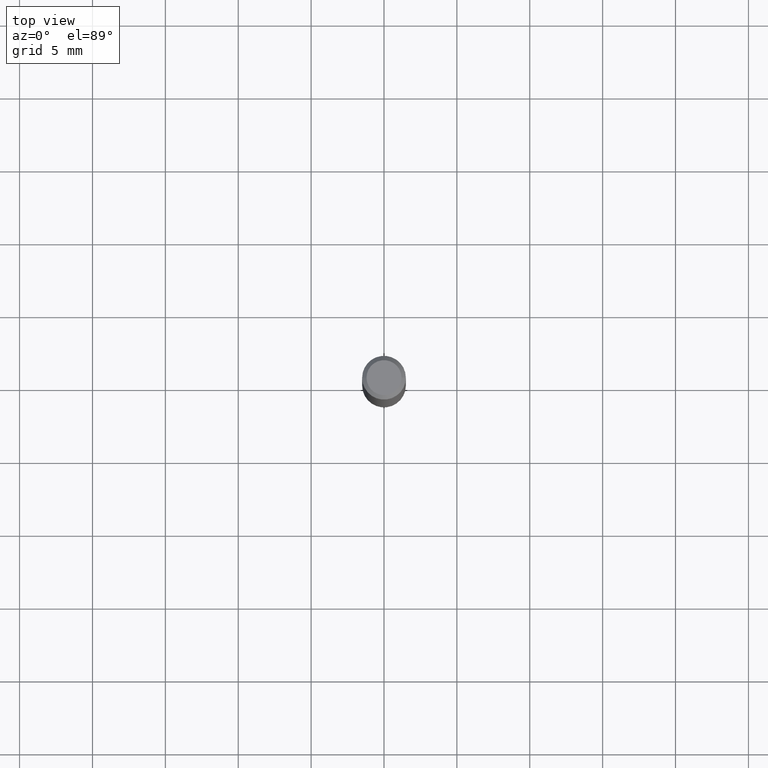
[diagram: clean part render]
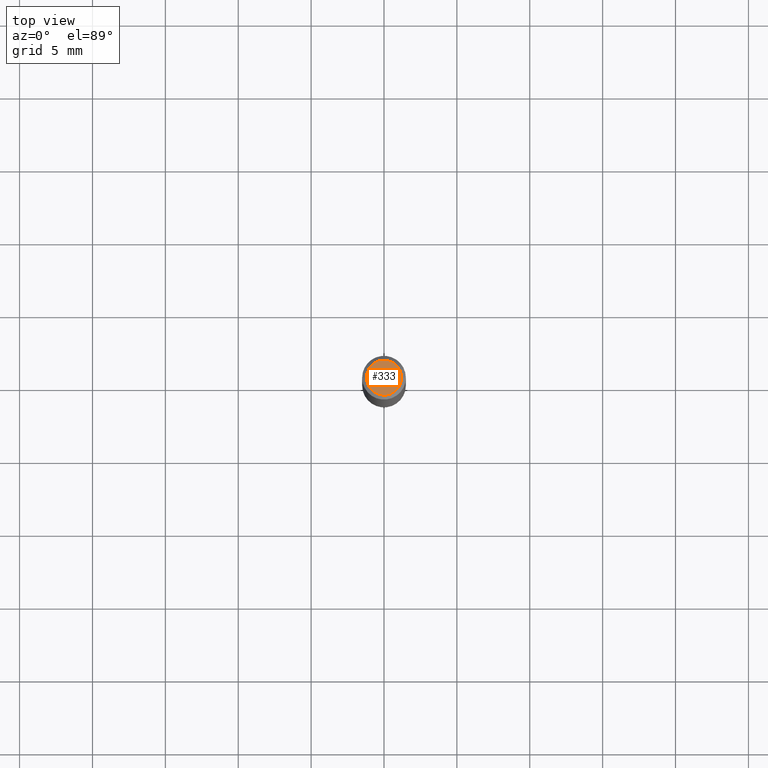
[diagram: same view with one face highlighted and labeled with its STEP entity id]
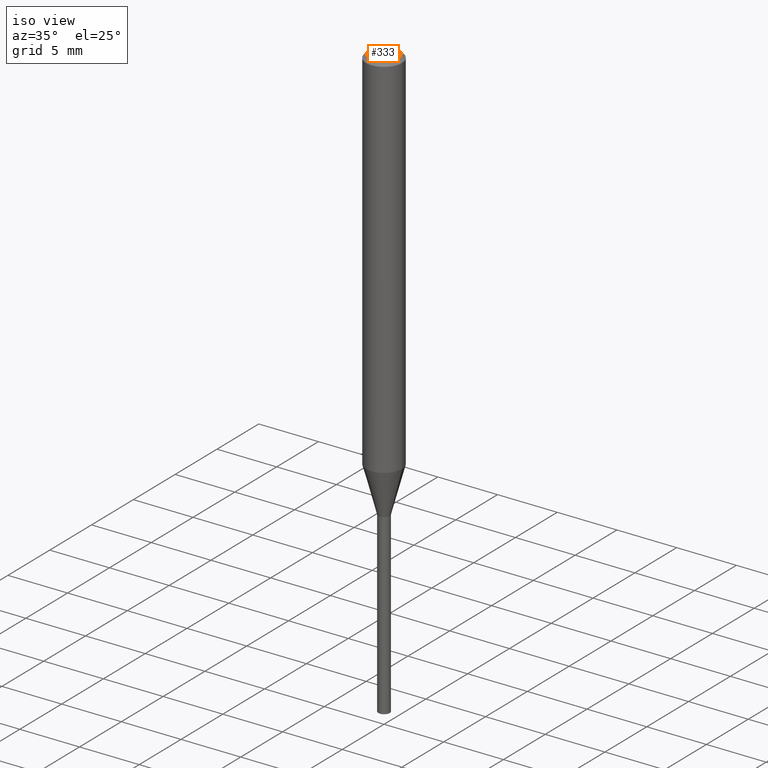
[diagram: same view with one face highlighted and labeled with its STEP entity id]
A machine part, top view. The second image highlights one B-rep face of the part: STEP entity #333.
A second angle (iso view) of the same face is appended — the face is thin or edge-on in the first view.
In plain terms, the highlighted planar face has unit normal (0, -0, -1).
Its self-contained STEP definition (entity closure, byte-faithful):
#32 = CIRCLE ( 'NONE', #52, 0.04724000000000000421 ) ;
#40 = AXIS2_PLACEMENT_3D ( 'NONE', #225, #106, #374 ) ;
#41 = DIRECTION ( 'NONE',  ( -1.000000000000000000, 6.982962677686265922E-15, -4.876176775795935793E-29 ) ) ;
#45 = DIRECTION ( 'NONE',  ( 2.438088387897960049E-29, -3.491481338843145188E-15, -1.000000000000000000 ) ) ;
#52 = AXIS2_PLACEMENT_3D ( 'NONE', #476, #367, #484 ) ;
#70 = ORIENTED_EDGE ( 'NONE', *, *, #270, .T. ) ;
#76 = CARTESIAN_POINT ( 'NONE',  ( 4.132873053354867254E-48, -5.900647395337818946E-34, -1.690012582823346072E-19 ) ) ;
#86 = CARTESIAN_POINT ( 'NONE',  ( -0.04724000000000000421, 3.504923541997677355E-16, -3.380025165670481712E-19 ) ) ;
#106 = DIRECTION ( 'NONE',  ( -2.445468806185136597E-29, 3.491481338843145583E-15, 1.000000000000000000 ) ) ;
#134 = CARTESIAN_POINT ( 'NONE',  ( 0.04724000000000000421, -3.852183633974369838E-16, -3.380025165621689721E-19 ) ) ;
#160 = EDGE_CURVE ( 'NONE', #464, #199, #32, .T. ) ;
#199 = VERTEX_POINT ( 'NONE', #86 ) ;
#225 = CARTESIAN_POINT ( 'NONE',  ( 8.265746106709734507E-48, -1.180129479067563789E-33, -3.380025165646692144E-19 ) ) ;
#237 = FACE_OUTER_BOUND ( 'NONE', #278, .T. ) ;
#270 = EDGE_CURVE ( 'NONE', #199, #464, #365, .T. ) ;
#278 = EDGE_LOOP ( 'NONE', ( #70, #306 ) ) ;
#281 = PLANE ( 'NONE',  #457 ) ;
#306 = ORIENTED_EDGE ( 'NONE', *, *, #160, .T. ) ;
#333 = ADVANCED_FACE ( 'NONE', ( #237 ), #281, .F. ) ;
#365 = CIRCLE ( 'NONE', #40, 0.04724000000000000421 ) ;
#367 = DIRECTION ( 'NONE',  ( -2.445468806185136597E-29, 3.491481338843145583E-15, 1.000000000000000000 ) ) ;
#374 = DIRECTION ( 'NONE',  ( 1.000000000000000000, -6.982962677686266711E-15, 4.876185090822587894E-29 ) ) ;
#457 = AXIS2_PLACEMENT_3D ( 'NONE', #76, #45, #41 ) ;
#464 = VERTEX_POINT ( 'NONE', #134 ) ;
#476 = CARTESIAN_POINT ( 'NONE',  ( 8.265746106709734507E-48, -1.180129479067563789E-33, -3.380025165646692144E-19 ) ) ;
#484 = DIRECTION ( 'NONE',  ( 1.000000000000000000, -6.982962677686266711E-15, 4.876185090822587894E-29 ) ) ;